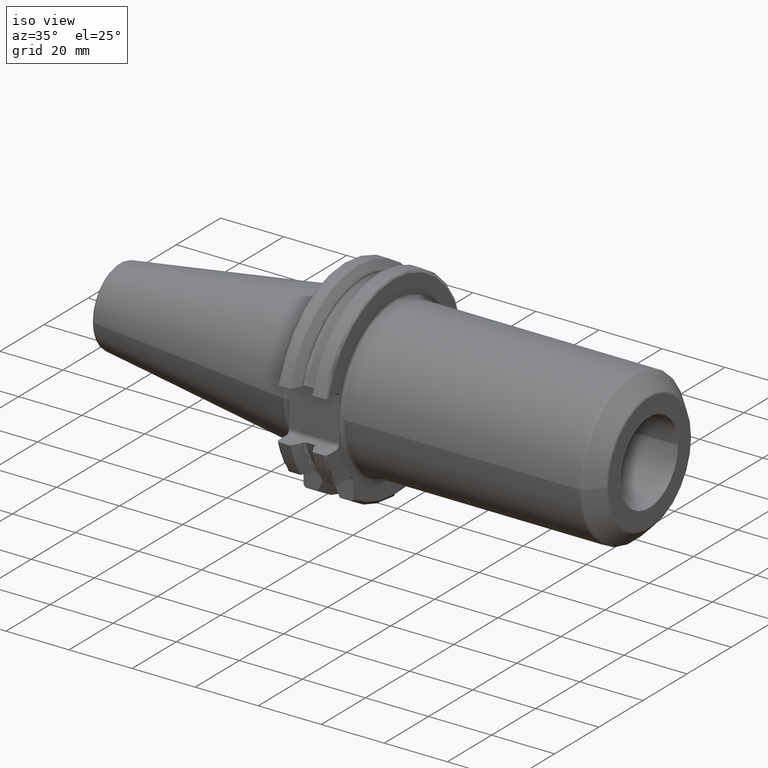
[diagram: clean part render]
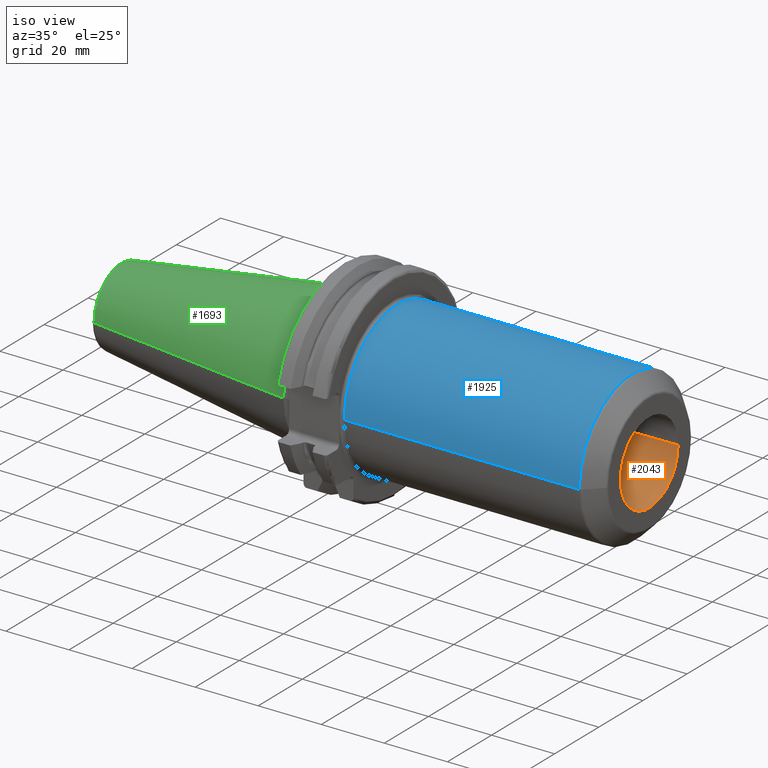
[diagram: same view with three faces highlighted in distinct colors, each labeled with its STEP entity id]
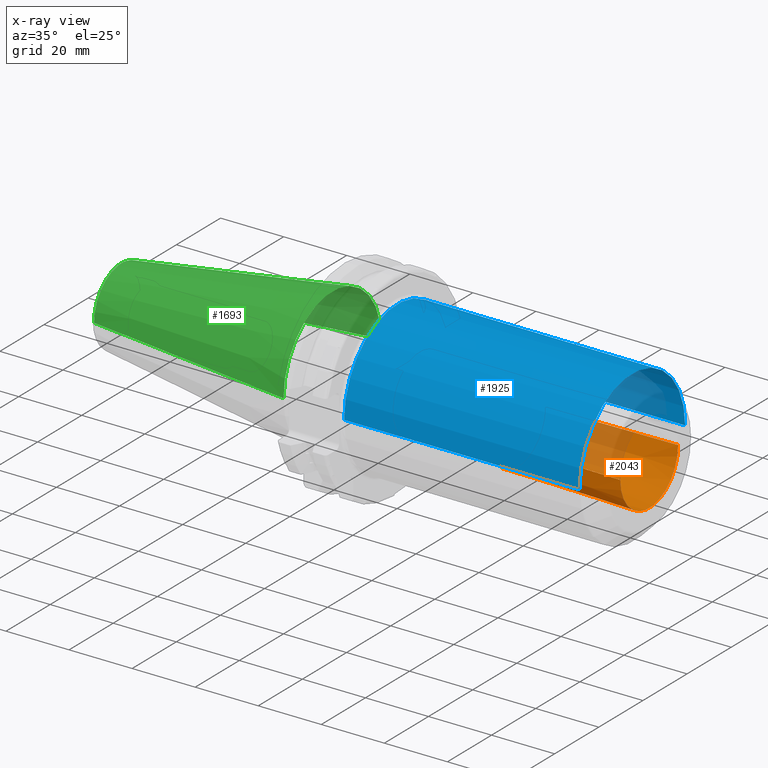
[diagram: x-ray of the same camera — body ghosted, the three highlighted faces saturated]
A machine part, iso view with three faces highlighted in distinct colors.
The next image is the same camera in x-ray (body ghosted, the three faces saturated) — at least one of them is partly hidden behind the body in this view.
Their STEP definitions:

[orange] entity #2043 — the highlighted conical surface has half-angle 0.985 deg.
#298=CARTESIAN_POINT('',(1.E2,0.E0,0.E0));
#299=DIRECTION('',(1.E0,0.E0,0.E0));
#300=DIRECTION('',(0.E0,-1.E0,0.E0));
#301=AXIS2_PLACEMENT_3D('',#298,#299,#300);
#313=DIRECTION('',(-9.998521465673E-1,1.719549373433E-2,0.E0));
#314=VECTOR('',#313,4.149342909390E1);
#315=CARTESIAN_POINT('',(1.E2,-1.30735E1,0.E0));
#316=LINE('',#315,#314);
#317=DIRECTION('',(-9.998521465673E-1,-1.719549373433E-2,0.E0));
#318=VECTOR('',#317,4.149342909390E1);
#319=CARTESIAN_POINT('',(1.E2,1.30735E1,0.E0));
#320=LINE('',#319,#318);
#325=CARTESIAN_POINT('',(5.851270585203E1,0.E0,0.E0));
#326=DIRECTION('',(-1.E0,0.E0,0.E0));
#327=DIRECTION('',(0.E0,1.E0,0.E0));
#328=AXIS2_PLACEMENT_3D('',#325,#326,#327);
#1585=CARTESIAN_POINT('',(5.851270585203E1,1.236E1,0.E0));
#1587=VERTEX_POINT('',#1585);
#1589=CARTESIAN_POINT('',(5.851270585203E1,-1.236E1,0.E0));
#1591=VERTEX_POINT('',#1589);
#1593=CARTESIAN_POINT('',(1.E2,1.30735E1,0.E0));
#1594=CARTESIAN_POINT('',(1.E2,-1.30735E1,0.E0));
#1595=VERTEX_POINT('',#1593);
#1596=VERTEX_POINT('',#1594);
#2031=CARTESIAN_POINT('',(7.925635292602E1,0.E0,0.E0));
#2032=DIRECTION('',(1.E0,0.E0,0.E0));
#2033=DIRECTION('',(0.E0,-1.E0,0.E0));
#2034=AXIS2_PLACEMENT_3D('',#2031,#2032,#2033);
#2035=CONICAL_SURFACE('',#2034,1.271675E1,9.85277777E-1);
#2036=ORIENTED_EDGE('',*,*,#2011,.F.);
#2037=ORIENTED_EDGE('',*,*,#2026,.T.);
#2039=ORIENTED_EDGE('',*,*,#2038,.F.);
#2040=ORIENTED_EDGE('',*,*,#2022,.F.);
#2041=EDGE_LOOP('',(#2036,#2037,#2039,#2040));
#2042=FACE_OUTER_BOUND('',#2041,.F.);
#2043=ADVANCED_FACE('',(#2042),#2035,.F.);
#302=CIRCLE('',#301,1.30735E1);
#329=CIRCLE('',#328,1.236E1);
#2011=EDGE_CURVE('',#1596,#1595,#302,.T.);
#2022=EDGE_CURVE('',#1595,#1587,#320,.T.);
#2026=EDGE_CURVE('',#1596,#1591,#316,.T.);
#2038=EDGE_CURVE('',#1587,#1591,#329,.T.);

[blue] entity #1925 — the highlighted cylindrical surface (partial cylindrical patch) has radius 24 mm, axis along (1, 0, 0).
#139=CARTESIAN_POINT('',(1.905E1,0.E0,0.E0));
#140=DIRECTION('',(1.E0,0.E0,0.E0));
#141=DIRECTION('',(0.E0,1.E0,0.E0));
#142=AXIS2_PLACEMENT_3D('',#139,#140,#141);
#228=CARTESIAN_POINT('',(9.458578643763E1,0.E0,0.E0));
#229=DIRECTION('',(-1.E0,0.E0,0.E0));
#230=DIRECTION('',(0.E0,-1.E0,0.E0));
#231=AXIS2_PLACEMENT_3D('',#228,#229,#230);
#233=CARTESIAN_POINT('',(2.005E1,0.E0,0.E0));
#234=DIRECTION('',(1.E0,0.E0,0.E0));
#235=DIRECTION('',(0.E0,9.496390441762E-1,3.133459522256E-1));
#236=AXIS2_PLACEMENT_3D('',#233,#234,#235);
#238=DIRECTION('',(-1.E0,0.E0,0.E0));
#239=VECTOR('',#238,1.E0);
#240=CARTESIAN_POINT('',(2.005E1,2.279133706023E1,7.520302853414E0));
#241=LINE('',#240,#239);
#257=DIRECTION('',(-1.E0,0.E0,2.521249668337E-13));
#258=VECTOR('',#257,7.553578643763E1);
#259=CARTESIAN_POINT('',(9.458578643763E1,2.4E1,-1.904249821546E-11));
#260=LINE('',#259,#258);
#270=DIRECTION('',(-9.999999999953E-1,4.371371797497E-11,-3.063276622315E-6));
#271=VECTOR('',#270,7.453578643798E1);
#272=CARTESIAN_POINT('',(9.458578643763E1,-2.4E1,1.904139601998E-11));
#273=LINE('',#272,#271);
#1601=CARTESIAN_POINT('',(2.005E1,-2.4E1,0.E0));
#1603=VERTEX_POINT('',#1601);
#1609=CARTESIAN_POINT('',(2.005E1,2.279133706023E1,7.520302853413E0));
#1610=VERTEX_POINT('',#1609);
#1619=CARTESIAN_POINT('',(9.458578643763E1,2.4E1,0.E0));
#1620=CARTESIAN_POINT('',(9.458578643763E1,-2.4E1,0.E0));
#1621=VERTEX_POINT('',#1619);
#1622=VERTEX_POINT('',#1620);
#1627=CARTESIAN_POINT('',(1.905E1,2.279133706023E1,7.520302853414E0));
#1628=VERTEX_POINT('',#1627);
#1631=CARTESIAN_POINT('',(1.905E1,2.4E1,0.E0));
#1632=VERTEX_POINT('',#1631);
#1908=CARTESIAN_POINT('',(1.50025E1,0.E0,0.E0));
#1909=DIRECTION('',(1.E0,0.E0,0.E0));
#1910=DIRECTION('',(0.E0,-1.E0,0.E0));
#1911=AXIS2_PLACEMENT_3D('',#1908,#1909,#1910);
#1912=CYLINDRICAL_SURFACE('',#1911,2.4E1);
#1914=ORIENTED_EDGE('',*,*,#1913,.F.);
#1916=ORIENTED_EDGE('',*,*,#1915,.T.);
#1917=ORIENTED_EDGE('',*,*,#1894,.F.);
#1919=ORIENTED_EDGE('',*,*,#1918,.T.);
#1920=ORIENTED_EDGE('',*,*,#1810,.F.);
#1922=ORIENTED_EDGE('',*,*,#1921,.F.);
#1923=EDGE_LOOP('',(#1914,#1916,#1917,#1919,#1920,#1922));
#1924=FACE_OUTER_BOUND('',#1923,.F.);
#1925=ADVANCED_FACE('',(#1924),#1912,.T.);
#143=CIRCLE('',#142,2.4E1);
#232=CIRCLE('',#231,2.4E1);
#237=CIRCLE('',#236,2.4E1);
#1810=EDGE_CURVE('',#1632,#1628,#143,.T.);
#1894=EDGE_CURVE('',#1610,#1603,#237,.T.);
#1913=EDGE_CURVE('',#1622,#1621,#232,.T.);
#1915=EDGE_CURVE('',#1622,#1603,#273,.T.);
#1918=EDGE_CURVE('',#1610,#1628,#241,.T.);
#1921=EDGE_CURVE('',#1621,#1632,#260,.T.);

[green] entity #1693 — the highlighted conical surface has half-angle 8.298 deg.
#37=CARTESIAN_POINT('',(-6.743710273571E1,0.E0,0.E0));
#38=DIRECTION('',(1.E0,0.E0,0.E0));
#39=DIRECTION('',(0.E0,1.E0,0.E0));
#40=AXIS2_PLACEMENT_3D('',#37,#38,#39);
#42=CARTESIAN_POINT('',(-4.896823332305E-1,0.E0,0.E0));
#43=DIRECTION('',(1.E0,0.E0,0.E0));
#44=DIRECTION('',(0.E0,1.E0,0.E0));
#45=AXIS2_PLACEMENT_3D('',#42,#43,#44);
#47=DIRECTION('',(-9.895312636440E-1,-1.443186691705E-1,0.E0));
#48=VECTOR('',#47,6.765568998391E1);
#49=CARTESIAN_POINT('',(-4.896823332305E-1,2.215358204157E1,0.E0));
#50=LINE('',#49,#48);
#51=DIRECTION('',(-9.895312636440E-1,1.443186691705E-1,0.E0));
#52=VECTOR('',#51,6.765568998391E1);
#53=CARTESIAN_POINT('',(-4.896823332305E-1,-2.215358204157E1,0.E0));
#54=LINE('',#53,#52);
#1351=CARTESIAN_POINT('',(-6.743710273571E1,1.238960290128E1,0.E0));
#1353=VERTEX_POINT('',#1351);
#1355=CARTESIAN_POINT('',(-6.743710273571E1,-1.238960290128E1,0.E0));
#1357=VERTEX_POINT('',#1355);
#1419=CARTESIAN_POINT('',(-4.896823332305E-1,2.215358204157E1,0.E0));
#1420=VERTEX_POINT('',#1419);
#1421=CARTESIAN_POINT('',(-4.896823332305E-1,-2.215358204157E1,0.E0));
#1422=VERTEX_POINT('',#1421);
#1679=CARTESIAN_POINT('',(-3.396339253447E1,0.E0,0.E0));
#1680=DIRECTION('',(1.E0,0.E0,0.E0));
#1681=DIRECTION('',(0.E0,-1.E0,0.E0));
#1682=AXIS2_PLACEMENT_3D('',#1679,#1680,#1681);
#1683=CONICAL_SURFACE('',#1682,1.727159247143E1,8.297826828206E0);
#1685=ORIENTED_EDGE('',*,*,#1684,.F.);
#1687=ORIENTED_EDGE('',*,*,#1686,.T.);
#1689=ORIENTED_EDGE('',*,*,#1688,.T.);
#1690=ORIENTED_EDGE('',*,*,#1672,.F.);
#1691=EDGE_LOOP('',(#1685,#1687,#1689,#1690));
#1692=FACE_OUTER_BOUND('',#1691,.F.);
#1693=ADVANCED_FACE('',(#1692),#1683,.T.);
#41=CIRCLE('',#40,1.238960290128E1);
#46=CIRCLE('',#45,2.215358204157E1);
#1672=EDGE_CURVE('',#1353,#1357,#41,.T.);
#1684=EDGE_CURVE('',#1420,#1353,#50,.T.);
#1686=EDGE_CURVE('',#1420,#1422,#46,.T.);
#1688=EDGE_CURVE('',#1422,#1357,#54,.T.);